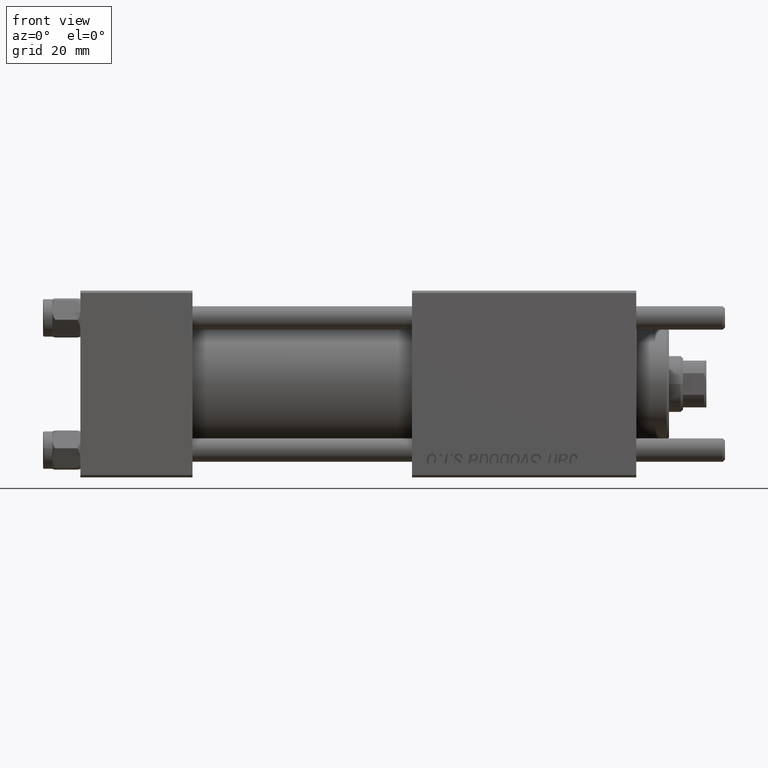
[diagram: clean part render]
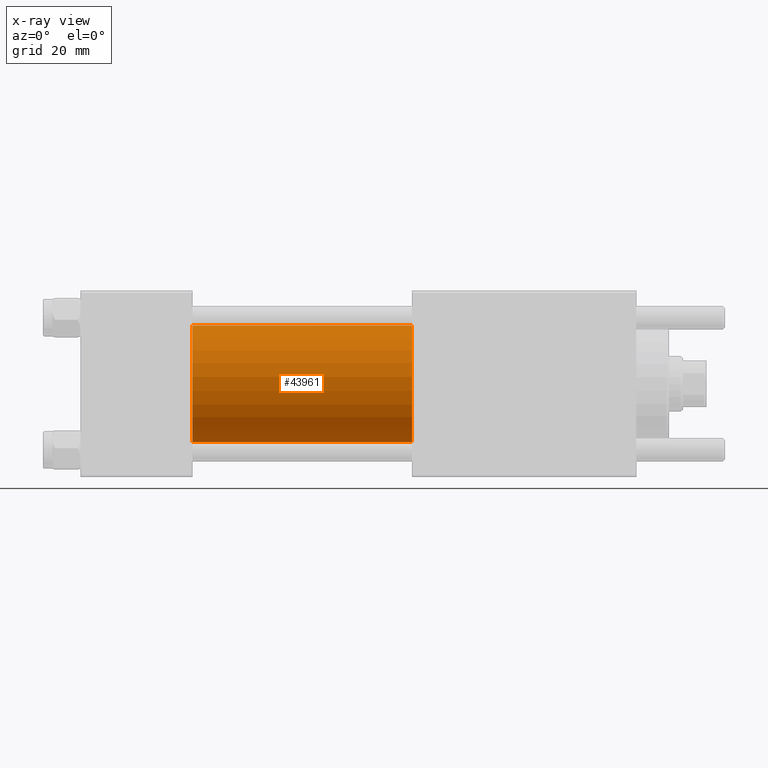
[diagram: x-ray — body ghosted, one internal face saturated and labeled with its STEP entity id]
A machine part, front view, then the same camera in x-ray: the body is ghosted and one INTERNAL B-rep face — a face not visible from any outside direction — is saturated and labeled: STEP entity #43961.
In plain terms, the highlighted cylindrical surface (partial cylindrical patch) has radius 12.5 mm, axis along (-1, -0, -0).
Its self-contained STEP definition (entity closure, byte-faithful):
#516 = VERTEX_POINT ( 'NONE', #25398 ) ;
#1694 = CIRCLE ( 'NONE', #16354, 12.49999999999999645 ) ;
#2494 = DIRECTION ( 'NONE',  ( 0.000000000000000000, 0.000000000000000000, -1.000000000000000000 ) ) ;
#3476 = DIRECTION ( 'NONE',  ( -1.000000000000000000, -0.000000000000000000, -0.000000000000000000 ) ) ;
#3884 = ORIENTED_EDGE ( 'NONE', *, *, #38945, .T. ) ;
#4089 = LINE ( 'NONE', #12973, #46834 ) ;
#8274 = CARTESIAN_POINT ( 'NONE',  ( 71.00000000000001421, -1.071276715031019515E-15, -12.49999999999999645 ) ) ;
#8370 = ORIENTED_EDGE ( 'NONE', *, *, #50327, .F. ) ;
#12973 = CARTESIAN_POINT ( 'NONE',  ( 71.00000000000001421, -2.602085213965210642E-15, 12.49999999999999645 ) ) ;
#16354 = AXIS2_PLACEMENT_3D ( 'NONE', #55023, #28615, #55592 ) ;
#17272 = DIRECTION ( 'NONE',  ( -1.000000000000000000, -0.000000000000000000, -0.000000000000000000 ) ) ;
#18041 = CARTESIAN_POINT ( 'NONE',  ( 71.00000000000001421, -2.602085213965210642E-15, 0.000000000000000000 ) ) ;
#19463 = EDGE_LOOP ( 'NONE', ( #3884, #56657, #8370, #27642 ) ) ;
#19880 = VERTEX_POINT ( 'NONE', #27971 ) ;
#20936 = VECTOR ( 'NONE', #3476, 1000.000000000000000 ) ;
#21830 = AXIS2_PLACEMENT_3D ( 'NONE', #18041, #48200, #22365 ) ;
#22365 = DIRECTION ( 'NONE',  ( 0.000000000000000000, 0.000000000000000000, 1.000000000000000000 ) ) ;
#25398 = CARTESIAN_POINT ( 'NONE',  ( 24.00000000000000000, -2.602085213965210642E-15, 12.49999999999999645 ) ) ;
#25404 = CARTESIAN_POINT ( 'NONE',  ( 24.00000000000000000, -1.071276715031019515E-15, -12.49999999999999645 ) ) ;
#27642 = ORIENTED_EDGE ( 'NONE', *, *, #55928, .F. ) ;
#27971 = CARTESIAN_POINT ( 'NONE',  ( 71.00000000000001421, -2.602085213965210642E-15, 12.49999999999999645 ) ) ;
#28314 = CARTESIAN_POINT ( 'NONE',  ( 24.00000000000000000, -2.602085213965210642E-15, 0.000000000000000000 ) ) ;
#28615 = DIRECTION ( 'NONE',  ( 1.000000000000000000, 0.000000000000000000, 0.000000000000000000 ) ) ;
#30153 = AXIS2_PLACEMENT_3D ( 'NONE', #28314, #37223, #2494 ) ;
#30689 = CYLINDRICAL_SURFACE ( 'NONE', #21830, 12.49999999999999645 ) ;
#33806 = CIRCLE ( 'NONE', #30153, 12.49999999999999645 ) ;
#35017 = LINE ( 'NONE', #42778, #20936 ) ;
#37223 = DIRECTION ( 'NONE',  ( 1.000000000000000000, 0.000000000000000000, 0.000000000000000000 ) ) ;
#38945 = EDGE_CURVE ( 'NONE', #19880, #47577, #1694, .T. ) ;
#42778 = CARTESIAN_POINT ( 'NONE',  ( 71.00000000000001421, -1.071276715031019515E-15, -12.49999999999999645 ) ) ;
#43961 = ADVANCED_FACE ( 'NONE', ( #52783 ), #30689, .F. ) ;
#46834 = VECTOR ( 'NONE', #17272, 1000.000000000000000 ) ;
#47577 = VERTEX_POINT ( 'NONE', #8274 ) ;
#48200 = DIRECTION ( 'NONE',  ( -1.000000000000000000, -0.000000000000000000, -0.000000000000000000 ) ) ;
#48842 = EDGE_CURVE ( 'NONE', #47577, #53403, #35017, .T. ) ;
#50327 = EDGE_CURVE ( 'NONE', #516, #53403, #33806, .T. ) ;
#52783 = FACE_OUTER_BOUND ( 'NONE', #19463, .T. ) ;
#53403 = VERTEX_POINT ( 'NONE', #25404 ) ;
#55023 = CARTESIAN_POINT ( 'NONE',  ( 71.00000000000001421, -2.602085213965210642E-15, 0.000000000000000000 ) ) ;
#55592 = DIRECTION ( 'NONE',  ( 0.000000000000000000, 0.000000000000000000, -1.000000000000000000 ) ) ;
#55928 = EDGE_CURVE ( 'NONE', #19880, #516, #4089, .T. ) ;
#56657 = ORIENTED_EDGE ( 'NONE', *, *, #48842, .T. ) ;